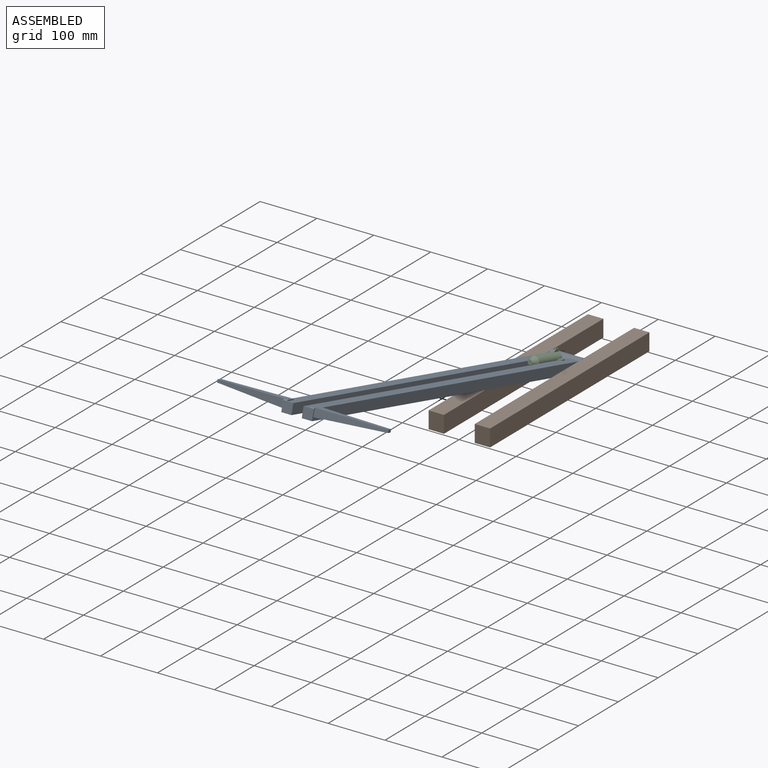
[diagram: assembled view]
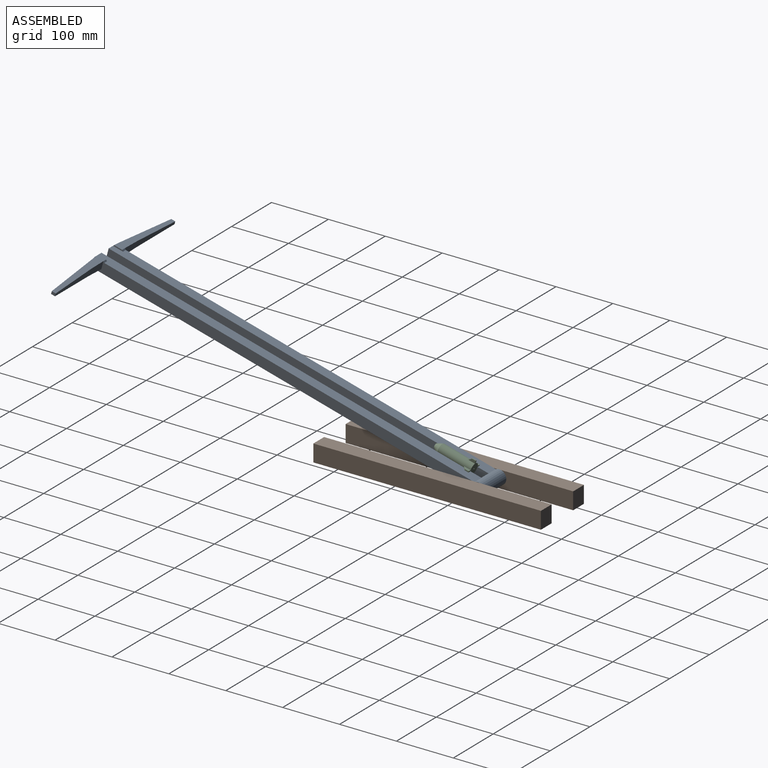
[diagram: assembled view, second angle]
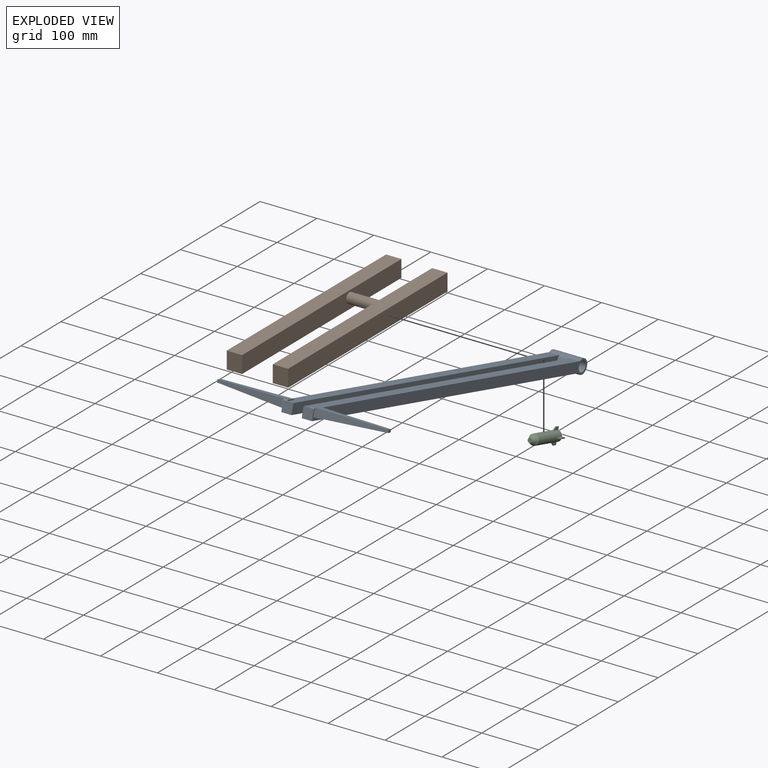
[diagram: exploded view]
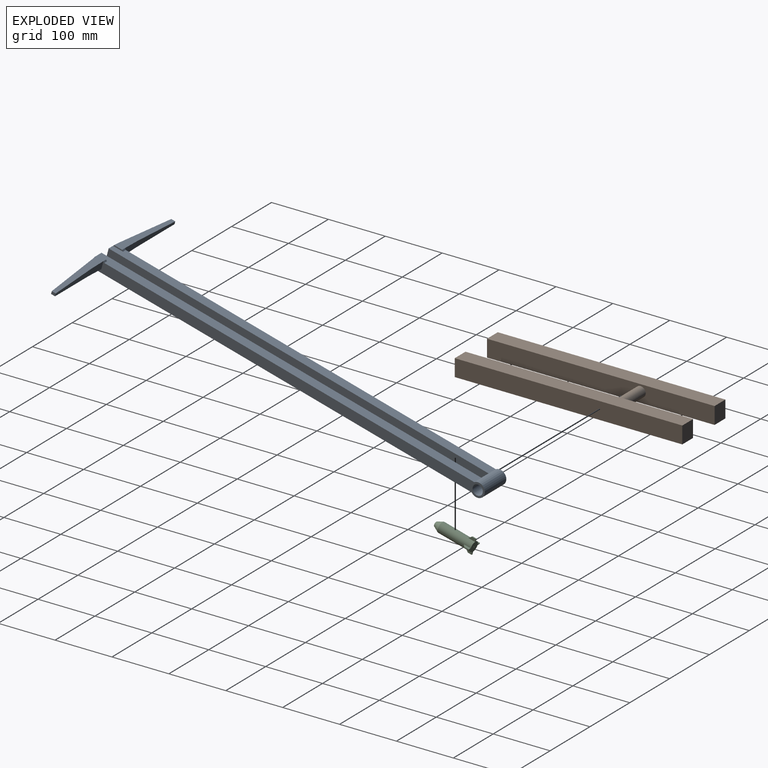
[diagram: exploded view, second angle]
ASSEMBLY  parts=3 mates=2
PART A: 36 faces, bbox 300x712.5x25 mm
  f0: plane 7x2mm, normal (0,-0.71,0.71), area 19.8mm2, adj f4,f13,f26,f35
  f1: plane 7x2mm, normal (0,0.71,0.71), area 19.8mm2, adj f6,f13,f26,f35
  f2: plane 31.33x14mm, normal (0,1,0), area 408.6mm2, adj f13,f24,f26,f28,f29,f31
  f3: plane 31.33x14mm, normal (0,1,0), area 408.6mm2, adj f12,f17,f18,f20,f21,f23
  f4: plane 18x18mm, normal (0,-1,0), area 324mm2, adj f0,f5,f6,f13,f14
  f5: plane 691.33x18mm, normal (0,0,-1), area 12443.9mm2, adj f4,f9,f13,f14
  f6: plane 691.33x18mm, normal (0,0,1), area 12317.9mm2, adj f1,f4,f9,f13,f14,f35
  f7: plane 18x18mm, normal (0,-1,0), area 324mm2, adj f8,f10,f12,f15,f32
  f8: plane 691.33x18mm, normal (0,0,-1), area 12443.9mm2, adj f7,f9,f12,f15
  f9: cylinder r=12.5mm len=54mm, axis (-1,0,0), area 3517.7mm2, adj f5,f6,f8,f10,f12,f13,f14,f15
  f10: plane 691.33x18mm, normal (0,0,1), area 12317.9mm2, adj f7,f9,f12,f15,f33,f34
  f11: cylinder r=9mm len=54mm, axis (-1,0,0), area 3053.6mm2, adj f12,f13
  f12: plane 712.5x25mm, normal (1,0,0), area 12468.7mm2, adj f3,f7,f8,f9,f10,f11,f16,f18
  f13: plane 712.5x25mm, normal (-1,0,0), area 12468.7mm2, adj f0,f1,f2,f4,f5,f6,f9,f11
  f14: plane 691.33x18mm, normal (1,0,0), area 12396.3mm2, adj f4,f5,f6,f9
  f15: plane 691.33x18mm, normal (-1,0,0), area 12396.3mm2, adj f7,f8,f9,f10
  f16: plane 14x3mm, normal (0,-1,0), area 42mm2, adj f12,f17,f18,f22
  f17: plane 14x10mm, normal (0,0,1), area 140mm2, adj f3,f16,f20,f32,f33,f34
  f18: plane 14x3mm, normal (0,0,-1), area 42mm2, adj f3,f12,f16,f21
  f19: plane 7.24x5mm, normal (1,0,0), area 36.2mm2, adj f20,f21,f22,f23
  f20: plane 120x17.24mm, normal (0.02,0,1), area 1228.7mm2, adj f3,f17,f19,f22,f23
  f21: plane 120x17.24mm, normal (0.05,0,-1), area 1229.8mm2, adj f3,f18,f19,f22,f23
  f22: plane 120x14mm, normal (0.08,-1,0), area 1144mm2, adj f16,f19,f20,f21
  f23: plane 91.67x11.88mm, normal (-0.04,1,0), area 773.9mm2, adj f3,f19,f20,f21
  f24: plane 14x3mm, normal (0,0,-1), area 42mm2, adj f2,f13,f25,f29
  f25: plane 14x3mm, normal (0,-1,0), area 42mm2, adj f13,f24,f26,f30
  f26: plane 14x10mm, normal (0,0,1), area 140mm2, adj f0,f1,f2,f25,f28,f35
  f27: plane 7.24x5mm, normal (-1,0,0), area 36.2mm2, adj f28,f29,f30,f31
  f28: plane 120x17.24mm, normal (-0.02,0,1), area 1228.7mm2, adj f2,f26,f27,f30,f31
  f29: plane 120x17.24mm, normal (-0.05,0,-1), area 1229.8mm2, adj f2,f24,f27,f30,f31
  f30: plane 120x14mm, normal (-0.08,-1,0), area 1144mm2, adj f25,f27,f28,f29
  f31: plane 91.67x11.88mm, normal (0.04,1,0), area 773.9mm2, adj f2,f27,f28,f29
  f32: plane 7x2mm, normal (0,-0.71,0.71), area 19.8mm2, adj f7,f12,f17,f34
  f33: plane 7x2mm, normal (0,0.71,0.71), area 19.8mm2, adj f10,f12,f17,f34
  f34: plane 18x2mm, normal (-1,0,0), area 32mm2, adj f10,f17,f32,f33
  f35: plane 18x2mm, normal (1,0,0), area 32mm2, adj f0,f1,f6,f26
PART B: 13 faces, bbox 108x400x30 mm
  f0: plane 400x27mm, normal (0,0,1), area 10800mm2, adj f1,f3,f4,f7
  f1: plane 30x27mm, normal (0,-1,0), area 810mm2, adj f0,f2,f4,f7
  f2: plane 400x27mm, normal (0,0,-1), area 10800mm2, adj f1,f3,f4,f7
  f3: plane 30x27mm, normal (0,1,0), area 810mm2, adj f0,f2,f4,f7
  f4: plane 400x30mm, normal (-1,0,0), area 12000mm2, adj f0,f1,f2,f3
  f5: cylinder r=9mm len=54mm, axis (-1,0,0), area 3053.6mm2, adj f6,f7
  f6: plane 400x30mm, normal (-1,0,0), area 11745.5mm2, adj f5,f9,f10,f11,f12
  f7: plane 400x30mm, normal (1,0,0), area 11745.5mm2, adj f0,f1,f2,f3,f5
  f8: plane 400x30mm, normal (1,0,0), area 12000mm2, adj f9,f10,f11,f12
  f9: plane 30x27mm, normal (0,1,0), area 810mm2, adj f6,f8,f10,f12
  f10: plane 400x27mm, normal (0,0,-1), area 10800mm2, adj f6,f8,f9,f11
  f11: plane 30x27mm, normal (0,-1,0), area 810mm2, adj f6,f8,f10,f12
  f12: plane 400x27mm, normal (0,0,1), area 10800mm2, adj f6,f8,f9,f11
PART C: 32 faces, bbox 28x70x28 mm
  f0: plane 1x0.06mm, normal (0,-1,0), area 0mm2, adj f4,f15,f30
  f1: plane 1x0.06mm, normal (0,-1,0), area 0mm2, adj f4,f13,f29
  f2: plane 1x0.06mm, normal (0,-1,0), area 0mm2, adj f4,f24,f28
  f3: plane 1x0.06mm, normal (0,-1,0), area 0mm2, adj f4,f20,f27
  f4: cylinder r=9mm len=60mm, axis (0,1,0), area 3296.7mm2, adj f0,f1,f2,f3,f10,f12,f13,f14
  f5: plane 70x2mm, normal (0,0,-1), area 140mm2, adj f6,f8,f9,f10
  f6: plane 70x2mm, normal (-1,0,0), area 140mm2, adj f5,f7,f9,f10
  f7: plane 70x2mm, normal (0,0,1), area 140mm2, adj f6,f8,f9,f10
  f8: plane 70x2mm, normal (1,0,0), area 140mm2, adj f5,f7,f9,f10
  f9: plane 8x8mm, normal (0,-1,0), area 46.3mm2, adj f5,f6,f7,f8,f31
  f10: plane 28x28mm, normal (0,1,0), area 290.6mm2, adj f4,f5,f6,f7,f8,f11,f12,f13
  f11: plane 7x2mm, normal (1,0,0), area 14mm2, adj f10,f12,f13,f29
  f12: plane 12x5.06mm, normal (0,0,1), area 48.2mm2, adj f4,f10,f11,f14,f29
  f13: plane 12x5.06mm, normal (0,0,-1), area 48.2mm2, adj f1,f4,f10,f11,f29
  f14: plane 1x0.06mm, normal (0,-1,0), area 0mm2, adj f4,f12,f29
  f15: plane 12x5.06mm, normal (1,0,0), area 48.2mm2, adj f0,f4,f10,f16,f30
  f16: plane 7x2mm, normal (0,0,1), area 14mm2, adj f10,f15,f17,f30
  f17: plane 12x5.06mm, normal (-1,0,0), area 48.2mm2, adj f4,f10,f16,f18,f30
  f18: plane 1x0.06mm, normal (0,-1,0), area 0mm2, adj f4,f17,f30
  f19: plane 12x5.06mm, normal (0,0,-1), area 48.2mm2, adj f4,f10,f21,f22,f27
  f20: plane 12x5.06mm, normal (0,0,1), area 48.2mm2, adj f3,f4,f10,f21,f27
  f21: plane 7x2mm, normal (-1,0,0), area 14mm2, adj f10,f19,f20,f27
  f22: plane 1x0.06mm, normal (0,-1,0), area 0mm2, adj f4,f19,f27
  f23: plane 12x5.06mm, normal (1,0,0), area 48.2mm2, adj f4,f10,f25,f26,f28
  f24: plane 12x5.06mm, normal (-1,0,0), area 48.2mm2, adj f2,f4,f10,f25,f28
  f25: plane 7x2mm, normal (0,0,-1), area 14mm2, adj f10,f23,f24,f28
  f26: plane 1x0.06mm, normal (0,-1,0), area 0mm2, adj f4,f23,f28
  f27: plane 5x5mm, normal (-0.71,-0.71,0), area 14.1mm2, adj f3,f19,f20,f21,f22
  f28: plane 5x5mm, normal (0,-0.71,-0.71), area 14.1mm2, adj f2,f23,f24,f25,f26
  f29: plane 5x5mm, normal (0.71,-0.71,0), area 14.1mm2, adj f1,f11,f12,f13,f14
  f30: plane 5x5mm, normal (0,-0.71,0.71), area 14.1mm2, adj f0,f15,f16,f17,f18
  f31: cone r=4mm half-angle=26.6deg, axis (0,1,0), area 456.6mm2, adj f4,f9
PLACE A rot(axis=(-1,0,0),15deg) t=(40.5,-278.17,40.92)mm
PLACE B t=(40.5,0,45)mm
PLACE C rot(axis=(-1,0,0),15deg) t=(-14.44,48.66,19.6)mm
MATE slider C.f10 <-> A.f7  axis (0,0.97,-0.26) through (49.5,44.52,4.14)mm
MATE revolute A.f9 <-> B.f5  axis (1,0,0) through (67.5,70,-12)mm
